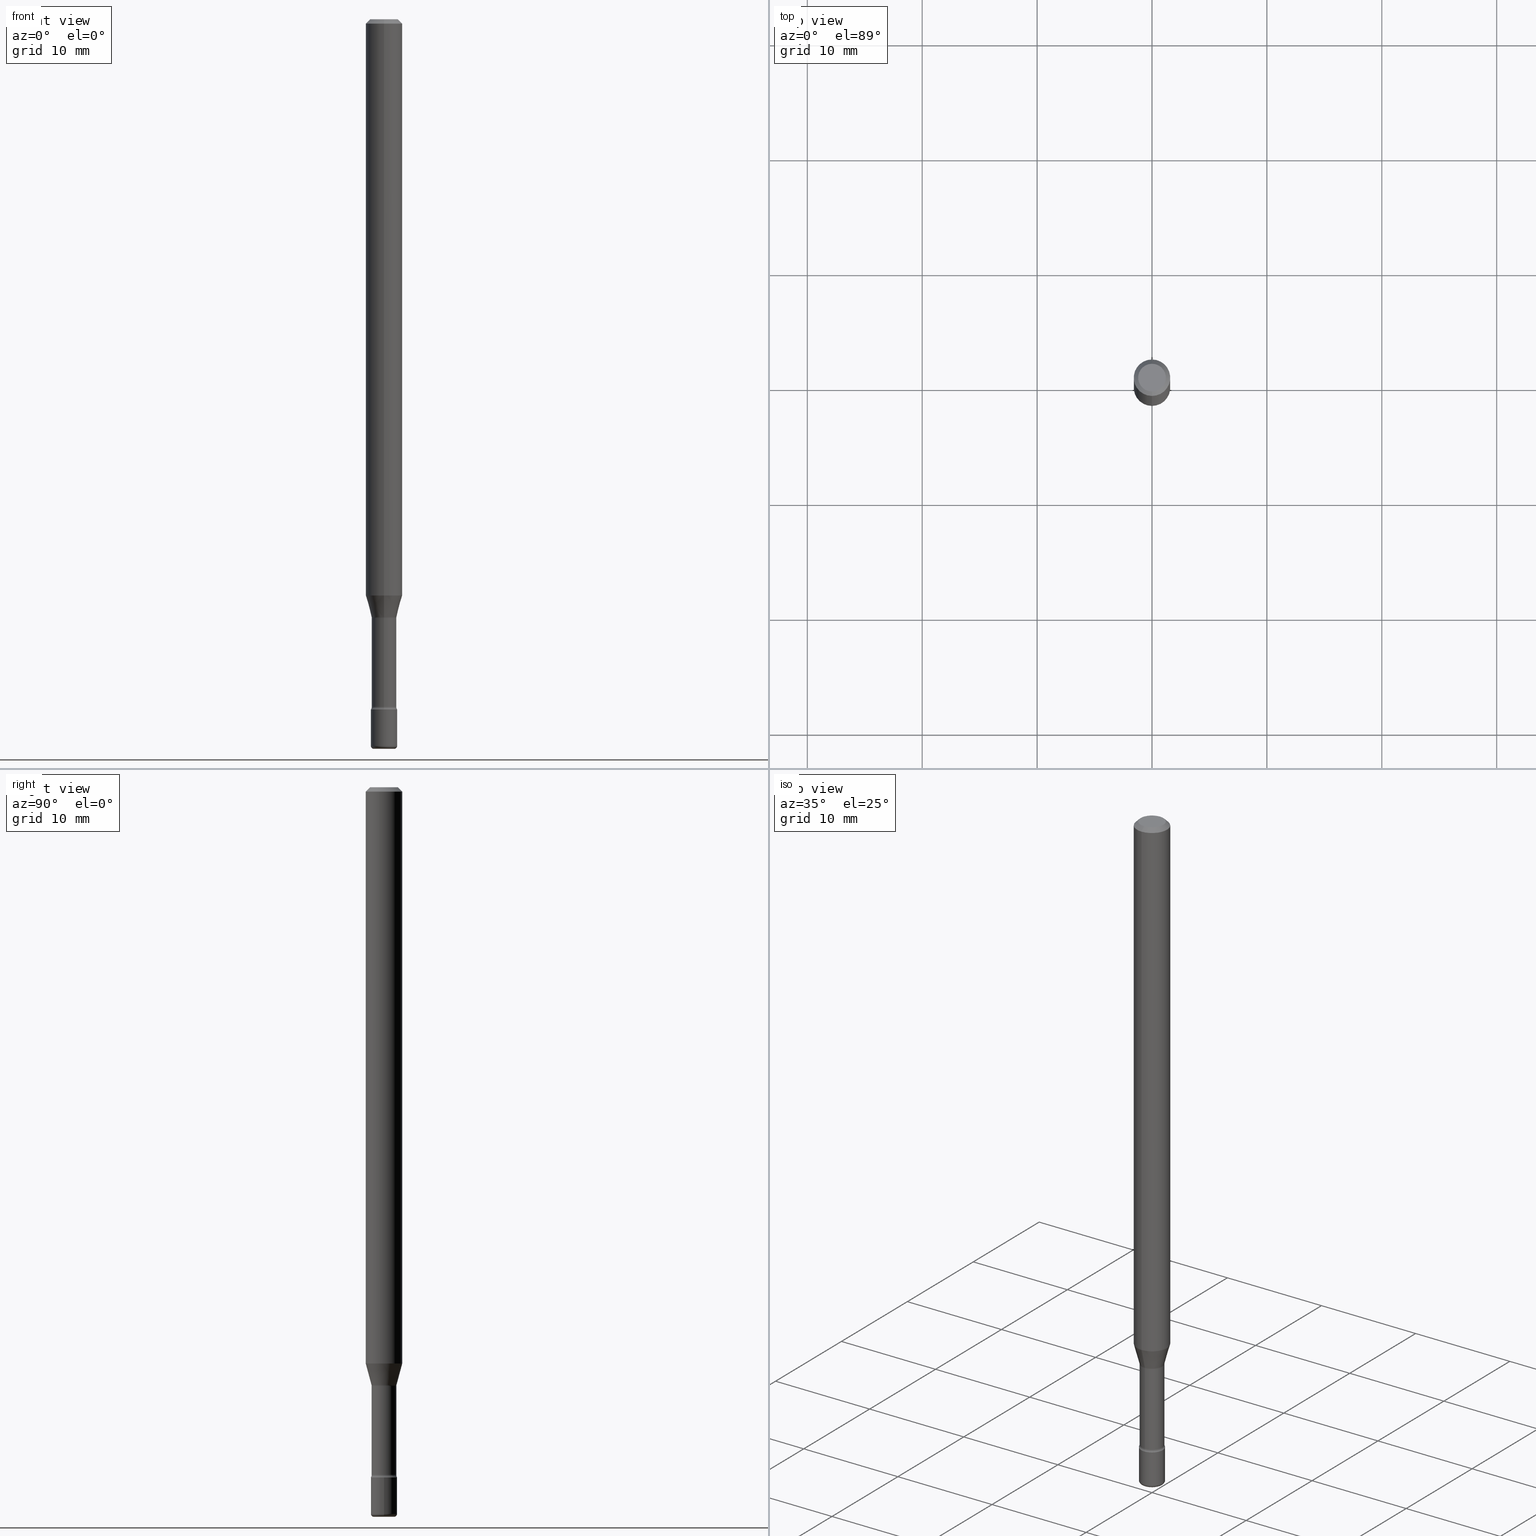
[diagram: canonical four-view strip — front | top / right | iso, engineering-drawing reading convention]
A machine part, canonical four-view strip (front | top / right | iso — engineering-drawing reading convention). The complete STEP part file that produces these views, byte-faithful:
ISO-10303-21;
HEADER;
FILE_DESCRIPTION (( 'STEP AP203' ),
    '1' );
FILE_NAME ('08851.STEP',
    '2024-03-06T20:05:46',
    ( '' ),
    ( '' ),
    'SwSTEP 2.0',
    'SolidWorks 2023',
    '' );
FILE_SCHEMA (( 'CONFIG_CONTROL_DESIGN' ));
ENDSEC;

DATA;
#1 = DIRECTION ( 'NONE',  ( -2.445411864812793917E-29, 3.491562882129241838E-15, 1.000000000000000000 ) ) ;
#2 = VERTEX_POINT ( 'NONE', #318 ) ;
#3 = DIRECTION ( 'NONE',  ( -2.445411864812793917E-29, 3.491562882129241838E-15, 1.000000000000000000 ) ) ;
#4 = VERTEX_POINT ( 'NONE', #486 ) ;
#5 = AXIS2_PLACEMENT_3D ( 'NONE', #411, #110, #73 ) ;
#6 = VECTOR ( 'NONE', #255, 39.37007874015748143 ) ;
#7 = TOROIDAL_SURFACE ( 'NONE', #409, 0.03499999999999999639, 0.01000000000000008694 ) ;
#8 = DIRECTION ( 'NONE',  ( -2.445411864812793917E-29, 3.491562882129241838E-15, 1.000000000000000000 ) ) ;
#9 = VERTEX_POINT ( 'NONE', #539 ) ;
#10 = EDGE_LOOP ( 'NONE', ( #423, #520, #572, #400 ) ) ;
#11 = PLANE ( 'NONE',  #37 ) ;
#12 = CARTESIAN_POINT ( 'NONE',  ( -4.001237614313655264E-16, -0.05730000000000824711, -2.356414547187247077 ) ) ;
#13 = ORIENTED_EDGE ( 'NONE', *, *, #502, .F. ) ;
#14 = EDGE_CURVE ( 'NONE', #252, #435, #36, .T. ) ;
#15 = ORIENTED_EDGE ( 'NONE', *, *, #545, .T. ) ;
#16 = CARTESIAN_POINT ( 'NONE',  ( 2.444036937190804124E-16, 0.03499999999999126726, -2.500000000000000000 ) ) ;
#17 = CIRCLE ( 'NONE', #448, 0.04281111260566397569 ) ;
#18 = CIRCLE ( 'NONE', #428, 0.06250000000000000000 ) ;
#19 = DIRECTION ( 'NONE',  ( -6.982962677686266711E-15, -1.000000000000000000, 6.458269488567998169E-15 ) ) ;
#20 = DIRECTION ( 'NONE',  ( -2.445411864812793917E-29, 3.491562882129241838E-15, 1.000000000000000000 ) ) ;
#21 = CARTESIAN_POINT ( 'NONE',  ( -0.04499999999999999833, -8.155826718949690513E-15, -2.365000000000000213 ) ) ;
#22 = DIRECTION ( 'NONE',  ( 1.000000000000000000, -6.982962677686266711E-15, 4.876176775795935793E-29 ) ) ;
#23 = MANIFOLD_SOLID_BREP ( 'Body-Move/Copy2[2]', #251 ) ;
#24 = DIRECTION ( 'NONE',  ( -2.445468806185136877E-29, 3.491481338843145188E-15, 1.000000000000000000 ) ) ;
#25 = DIRECTION ( 'NONE',  ( -2.445468806185136597E-29, 3.491481338843145583E-15, 1.000000000000000000 ) ) ;
#26 = PRODUCT ( '08851', '08851', '', ( #54 ) ) ;
#27 = FACE_OUTER_BOUND ( 'NONE', #131, .T. ) ;
#28 = AXIS2_PLACEMENT_3D ( 'NONE', #144, #236, #419 ) ;
#29 = APPROVAL_PERSON_ORGANIZATION ( #522, #567, #532 ) ;
#30 = DATE_AND_TIME ( #247, #390 ) ;
#31 = CARTESIAN_POINT ( 'NONE',  ( -0.04500000000000004691, -8.374044302627387137E-15, -2.489999999999999769 ) ) ;
#32 = DIRECTION ( 'NONE',  ( -2.445411864812793917E-29, 3.491562882129241838E-15, 1.000000000000000000 ) ) ;
#33 = PERSON_AND_ORGANIZATION_ROLE ( 'creator' ) ;
#34 = LINE ( 'NONE', #498, #169 ) ;
#35 = MANIFOLD_SOLID_BREP ( 'Body-Move/Copy2[1]', #527 ) ;
#36 = CIRCLE ( 'NONE', #348, 0.01000000000000008521 ) ;
#37 = AXIS2_PLACEMENT_3D ( 'NONE', #276, #322, #230 ) ;
#38 = ORIENTED_EDGE ( 'NONE', *, *, #306, .T. ) ;
#39 = CARTESIAN_POINT ( 'NONE',  ( 5.762404092109162712E-29, -8.227569567868378496E-15, -2.356414547187247521 ) ) ;
#40 = CARTESIAN_POINT ( 'NONE',  ( -2.953793212661290535E-16, -0.04229999999999999732, 6.257665088053130012E-16 ) ) ;
#41 = DIRECTION ( 'NONE',  ( -2.445411864812793917E-29, 3.491562882129241838E-15, 1.000000000000000000 ) ) ;
#42 = EDGE_CURVE ( 'NONE', #418, #435, #361, .T. ) ;
#43 = DIRECTION ( 'NONE',  ( -6.982962677686266711E-15, -1.000000000000000000, 6.458269488567998169E-15 ) ) ;
#44 = EDGE_CURVE ( 'NONE', #4, #129, #240, .T. ) ;
#45 = ORIENTED_EDGE ( 'NONE', *, *, #142, .T. ) ;
#46 = CIRCLE ( 'NONE', #253, 0.01500000000000001853 ) ;
#47 = ORIENTED_EDGE ( 'NONE', *, *, #371, .T. ) ;
#48 = CARTESIAN_POINT ( 'NONE',  ( 4.440892098500625669E-16, 0.06250000000000000000, 2.598507187581684484E-16 ) ) ;
#49 = ORIENTED_EDGE ( 'NONE', *, *, #387, .F. ) ;
#50 = DIRECTION ( 'NONE',  ( -6.982962677686265922E-15, -1.000000000000000000, 3.491562882129242627E-15 ) ) ;
#51 = ORIENTED_EDGE ( 'NONE', *, *, #311, .T. ) ;
#52 = FACE_OUTER_BOUND ( 'NONE', #145, .T. ) ;
#53 = COORDINATED_UNIVERSAL_TIME_OFFSET ( 5, 0, .BEHIND. ) ;
#54 = MECHANICAL_CONTEXT ( 'NONE', #293, 'mechanical' ) ;
#55 = ORIENTED_EDGE ( 'NONE', *, *, #337, .T. ) ;
#56 = EDGE_LOOP ( 'NONE', ( #516, #128, #101, #84 ) ) ;
#57 = AXIS2_PLACEMENT_3D ( 'NONE', #71, #8, #491 ) ;
#58 = AXIS2_PLACEMENT_3D ( 'NONE', #64, #343, #149 ) ;
#59 = COORDINATED_UNIVERSAL_TIME_OFFSET ( 5, 0, .BEHIND. ) ;
#60 = CARTESIAN_POINT ( 'NONE',  ( 5.762538269587286723E-29, -8.227377418082795508E-15, -2.356414547187247521 ) ) ;
#61 = DIRECTION ( 'NONE',  ( -6.982962677686265922E-15, -1.000000000000000000, 3.483106191921935554E-15 ) ) ;
#62 = ORIENTED_EDGE ( 'NONE', *, *, #495, .F. ) ;
#63 = PERSON_AND_ORGANIZATION ( #524, #398 ) ;
#64 = CARTESIAN_POINT ( 'NONE',  ( 3.142333204959397663E-16, 0.04499999999999174105, -2.365000000000000213 ) ) ;
#65 = DIRECTION ( 'NONE',  ( -1.000000000000000000, 7.105427357600962416E-15, 0.000000000000000000 ) ) ;
#66 = ORIENTED_EDGE ( 'NONE', *, *, #386, .F. ) ;
#67 = CC_DESIGN_PERSON_AND_ORGANIZATION_ASSIGNMENT ( #118, #172, ( #26 ) ) ;
#68 =( NAMED_UNIT ( * ) SI_UNIT ( $, .STERADIAN. ) SOLID_ANGLE_UNIT ( ) );
#69 = CIRCLE ( 'NONE', #308, 0.04500000000000000527 ) ;
#70 = ADVANCED_FACE ( 'NONE', ( #461 ), #481, .F. ) ;
#71 = CARTESIAN_POINT ( 'NONE',  ( 5.008429704104716788E-29, -7.151043758407661830E-15, -2.048092501787273534 ) ) ;
#72 = CARTESIAN_POINT ( 'NONE',  ( 5.017923491560715117E-29, -7.164599002973683646E-15, -2.051974787463811456 ) ) ;
#73 = DIRECTION ( 'NONE',  ( -6.982962677686265922E-15, -1.000000000000000000, 3.491562882129241838E-15 ) ) ;
#74 = DIRECTION ( 'NONE',  ( 2.445411864812793637E-29, -3.491562882129241838E-15, -1.000000000000000000 ) ) ;
#75 = DIRECTION ( 'NONE',  ( -4.851104656540962697E-15, -0.7071067811865497932, -0.7071067811865452413 ) ) ;
#76 = AXIS2_PLACEMENT_3D ( 'NONE', #60, #231, #413 ) ;
#77 = AXIS2_PLACEMENT_3D ( 'NONE', #301, #571, #478 ) ;
#78 = LOCAL_TIME ( 15, 5, 46.00000000000000000, #53 ) ;
#79 = DIRECTION ( 'NONE',  ( 4.937700262164546464E-15, 0.7071067811865449082, -0.7071067811865501263 ) ) ;
#80 = EDGE_CURVE ( 'NONE', #119, #566, #97, .T. ) ;
#81 = ADVANCED_FACE ( 'NONE', ( #143 ), #553, .T. ) ;
#82 = FACE_OUTER_BOUND ( 'NONE', #378, .T. ) ;
#83 = CIRCLE ( 'NONE', #153, 0.04750000000000000749 ) ;
#84 = ORIENTED_EDGE ( 'NONE', *, *, #440, .F. ) ;
#85 = ORIENTED_EDGE ( 'NONE', *, *, #292, .F. ) ;
#86 = DIRECTION ( 'NONE',  ( -6.982962677686265922E-15, -1.000000000000000000, 3.491562882129242627E-15 ) ) ;
#87 = CARTESIAN_POINT ( 'NONE',  ( -0.03499999999999999639, -8.445098576203397219E-15, -2.489999999999999769 ) ) ;
#88 = VECTOR ( 'NONE', #79, 39.37007874015748143 ) ;
#89 = CARTESIAN_POINT ( 'NONE',  ( 4.440892098501112297E-16, 0.06249999999999995837, -0.01500000000000024578 ) ) ;
#90 = AXIS2_PLACEMENT_3D ( 'NONE', #359, #127, #50 ) ;
#91 = ORIENTED_EDGE ( 'NONE', *, *, #476, .T. ) ;
#92 = ORIENTED_EDGE ( 'NONE', *, *, #296, .T. ) ;
#93 = CALENDAR_DATE ( 2024, 6, 3 ) ;
#94 = EDGE_CURVE ( 'NONE', #151, #211, #263, .T. ) ;
#95 = PERSON_AND_ORGANIZATION_ROLE ( 'creator' ) ;
#96 = EDGE_CURVE ( 'NONE', #4, #395, #340, .T. ) ;
#97 = CIRCLE ( 'NONE', #334, 0.04229999999999999732 ) ;
#98 = CONICAL_SURFACE ( 'NONE', #207, 0.06250000000000000000, 0.7853981633974480570 ) ;
#99 = ORIENTED_EDGE ( 'NONE', *, *, #292, .T. ) ;
#100 = FACE_OUTER_BOUND ( 'NONE', #215, .T. ) ;
#101 = ORIENTED_EDGE ( 'NONE', *, *, #458, .F. ) ;
#102 = CARTESIAN_POINT ( 'NONE',  ( 6.620752579593885833E-46, -9.460906030875025688E-32, -2.708531389104991304E-17 ) ) ;
#103 = CARTESIAN_POINT ( 'NONE',  ( 5.783533726627847872E-29, -8.257353366364040046E-15, -2.365000000000000213 ) ) ;
#104 = CARTESIAN_POINT ( 'NONE',  ( 0.000000000000000000, 0.000000000000000000, 0.000000000000000000 ) ) ;
#105 = PLANE ( 'NONE',  #341 ) ;
#106 = ORIENTED_EDGE ( 'NONE', *, *, #557, .T. ) ;
#107 = DIRECTION ( 'NONE',  ( -2.445468806185136597E-29, 3.491481338843145583E-15, 1.000000000000000000 ) ) ;
#108 = AXIS2_PLACEMENT_3D ( 'NONE', #279, #454, #488 ) ;
#109 = AXIS2_PLACEMENT_3D ( 'NONE', #474, #442, #362 ) ;
#110 = DIRECTION ( 'NONE',  ( -2.445411864812793917E-29, 3.491562882129241838E-15, 1.000000000000000000 ) ) ;
#111 = VECTOR ( 'NONE', #354, 39.37007874015748143 ) ;
#112 = DIRECTION ( 'NONE',  ( -2.445411864812793917E-29, 3.491562882129241838E-15, 1.000000000000000000 ) ) ;
#113 = DIRECTION ( 'NONE',  ( 0.000000000000000000, 0.000000000000000000, 1.000000000000000000 ) ) ;
#114 = ORIENTED_EDGE ( 'NONE', *, *, #533, .F. ) ;
#115 = ORIENTED_EDGE ( 'NONE', *, *, #533, .T. ) ;
#116 = AXIS2_PLACEMENT_3D ( 'NONE', #72, #377, #544 ) ;
#117 = DIRECTION ( 'NONE',  ( 1.000000000000000000, -6.982962677686278543E-15, 0.000000000000000000 ) ) ;
#118 = PERSON_AND_ORGANIZATION ( #524, #398 ) ;
#119 = VERTEX_POINT ( 'NONE', #160 ) ;
#120 = DIRECTION ( 'NONE',  ( -2.445411864812793917E-29, 3.491562882129241838E-15, 1.000000000000000000 ) ) ;
#121 = APPROVAL_STATUS ( 'not_yet_approved' ) ;
#122 = LINE ( 'NONE', #303, #6 ) ;
#123 = DIRECTION ( 'NONE',  ( -2.445411864812793917E-29, 3.491562882129241838E-15, 1.000000000000000000 ) ) ;
#124 = ORIENTED_EDGE ( 'NONE', *, *, #444, .F. ) ;
#125 = CIRCLE ( 'NONE', #509, 0.04229999999999999732 ) ;
#126 = PRODUCT_DEFINITION_FORMATION_WITH_SPECIFIED_SOURCE ( 'ANY', '', #26, .NOT_KNOWN. ) ;
#127 = DIRECTION ( 'NONE',  ( -2.445411864812793917E-29, 3.491562882129241838E-15, 1.000000000000000000 ) ) ;
#128 = ORIENTED_EDGE ( 'NONE', *, *, #439, .T. ) ;
#129 = VERTEX_POINT ( 'NONE', #470 ) ;
#130 = CARTESIAN_POINT ( 'NONE',  ( -3.773273898774340269E-16, -0.04750000000000000749, 1.387639230100891162E-16 ) ) ;
#131 = EDGE_LOOP ( 'NONE', ( #66, #270 ) ) ;
#132 = DIRECTION ( 'NONE',  ( -2.445411864812793917E-29, 3.491562882129241838E-15, 1.000000000000000000 ) ) ;
#133 = EDGE_CURVE ( 'NONE', #286, #4, #17, .T. ) ;
#134 = ADVANCED_FACE ( 'NONE', ( #82 ), #205, .T. ) ;
#135 = DIRECTION ( 'NONE',  ( 1.000000000000000000, -6.982962677686245411E-15, 0.000000000000000000 ) ) ;
#136 = ORIENTED_EDGE ( 'NONE', *, *, #306, .F. ) ;
#137 = AXIS2_PLACEMENT_3D ( 'NONE', #441, #120, #209 ) ;
#138 = DIRECTION ( 'NONE',  ( -1.000000000000000000, 6.982962677686265922E-15, -4.883557194083112340E-29 ) ) ;
#139 = APPROVAL ( #274, 'UNSPECIFIED' ) ;
#140 = LOCAL_TIME ( 15, 5, 46.00000000000000000, #59 ) ;
#141 = ORIENTED_EDGE ( 'NONE', *, *, #453, .T. ) ;
#142 = EDGE_CURVE ( 'NONE', #176, #373, #496, .T. ) ;
#143 = FACE_OUTER_BOUND ( 'NONE', #146, .T. ) ;
#144 = CARTESIAN_POINT ( 'NONE',  ( 5.008429704104716788E-29, -7.151043758407661830E-15, -2.048092501787273534 ) ) ;
#145 = EDGE_LOOP ( 'NONE', ( #85, #307, #45, #568 ) ) ;
#146 = EDGE_LOOP ( 'NONE', ( #266, #174, #536, #345 ) ) ;
#147 = CYLINDRICAL_SURFACE ( 'NONE', #449, 0.04499999999999999833 ) ;
#148 = CARTESIAN_POINT ( 'NONE',  ( 5.783533726627847872E-29, -8.257353366364040046E-15, -2.365000000000000213 ) ) ;
#149 = DIRECTION ( 'NONE',  ( -6.982962677686265922E-15, -1.000000000000000000, 3.491562882129241838E-15 ) ) ;
#150 = ORIENTED_EDGE ( 'NONE', *, *, #414, .F. ) ;
#151 = VERTEX_POINT ( 'NONE', #514 ) ;
#152 = CARTESIAN_POINT ( 'NONE',  ( 5.008429704104716788E-29, -7.151043758407661830E-15, -2.048092501787273534 ) ) ;
#153 = AXIS2_PLACEMENT_3D ( 'NONE', #503, #333, #289 ) ;
#154 = CIRCLE ( 'NONE', #325, 0.04229999999999999732 ) ;
#155 = CARTESIAN_POINT ( 'NONE',  ( 0.04499999999999999833, -3.142333204958819823E-16, 2.194279549108170967E-30 ) ) ;
#156 = DIRECTION ( 'NONE',  ( -6.982962677686265133E-15, -1.000000000000000000, 3.491562882129241838E-15 ) ) ;
#157 = CARTESIAN_POINT ( 'NONE',  ( 3.668117797219197392E-31, -5.237344323193873357E-17, -0.01500000000000002720 ) ) ;
#158 = DIRECTION ( 'NONE',  ( -1.000000000000000000, 6.982962677686265922E-15, -4.883557194083112340E-29 ) ) ;
#159 = CIRCLE ( 'NONE', #407, 0.06250000000000000000 ) ;
#160 = CARTESIAN_POINT ( 'NONE',  ( -2.953793212660714173E-16, -0.04230000000000822685, -2.356414547187247077 ) ) ;
#161 = ADVANCED_FACE ( 'NONE', ( #512 ), #497, .F. ) ;
#162 = AXIS2_PLACEMENT_3D ( 'NONE', #268, #113, #517 ) ;
#163 = ORIENTED_EDGE ( 'NONE', *, *, #414, .T. ) ;
#164 = APPLICATION_PROTOCOL_DEFINITION ( 'international standard', 'config_control_design', 1994, #293 ) ;
#165 =( LENGTH_UNIT ( ) NAMED_UNIT ( * ) SI_UNIT ( $, .METRE. ) );
#166 = CARTESIAN_POINT ( 'NONE',  ( 3.668117797219197392E-31, -5.237344323193873357E-17, -0.01500000000000002720 ) ) ;
#167 = AXIS2_PLACEMENT_3D ( 'NONE', #543, #275, #135 ) ;
#168 = DATE_TIME_ROLE ( 'creation_date' ) ;
#169 = VECTOR ( 'NONE', #75, 39.37007874015748143 ) ;
#170 = VECTOR ( 'NONE', #317, 39.37007874015748143 ) ;
#171 = VECTOR ( 'NONE', #1, 39.37007874015748143 ) ;
#172 = PERSON_AND_ORGANIZATION_ROLE ( 'design_owner' ) ;
#173 = DIRECTION ( 'NONE',  ( 2.445411864812793917E-29, -3.491562882129241838E-15, -1.000000000000000000 ) ) ;
#174 = ORIENTED_EDGE ( 'NONE', *, *, #324, .T. ) ;
#175 = FACE_OUTER_BOUND ( 'NONE', #329, .T. ) ;
#176 = VERTEX_POINT ( 'NONE', #198 ) ;
#177 = DATE_AND_TIME ( #228, #78 ) ;
#178 = VERTEX_POINT ( 'NONE', #336 ) ;
#179 = AXIS2_PLACEMENT_3D ( 'NONE', #399, #41, #299 ) ;
#180 = CARTESIAN_POINT ( 'NONE',  ( 3.101519041593414751E-16, 0.04229999999999176780, -2.356414547187247965 ) ) ;
#181 = ORIENTED_EDGE ( 'NONE', *, *, #80, .F. ) ;
#182 = SECURITY_CLASSIFICATION_LEVEL ( 'unclassified' ) ;
#183 = CARTESIAN_POINT ( 'NONE',  ( -2.989484015155254514E-16, -0.04281111260567112969, -2.048092501787273090 ) ) ;
#184 = DIRECTION ( 'NONE',  ( 2.438088387897960049E-29, -3.491481338843145188E-15, -1.000000000000000000 ) ) ;
#185 = CARTESIAN_POINT ( 'NONE',  ( 4.071409875905875748E-16, 0.05729999999999284971, -2.051974787463811456 ) ) ;
#186 = DIRECTION ( 'NONE',  ( 6.982962677686265922E-15, 1.000000000000000000, -3.483106191921935554E-15 ) ) ;
#187 = ADVANCED_FACE ( 'NONE', ( #452 ), #320, .F. ) ;
#188 = DIRECTION ( 'NONE',  ( 1.000000000000000000, -6.982962677686245411E-15, 0.000000000000000000 ) ) ;
#189 = DIRECTION ( 'NONE',  ( -1.807323732225332900E-15, -0.2588190451025185745, 0.9659258262890689783 ) ) ;
#190 = CYLINDRICAL_SURFACE ( 'NONE', #264, 0.04499999999999999833 ) ;
#191 = CIRCLE ( 'NONE', #389, 0.04499999999999999833 ) ;
#192 = CIRCLE ( 'NONE', #511, 0.06250000000000000000 ) ;
#193 = DIRECTION ( 'NONE',  ( -2.445468806185136597E-29, 3.491481338843145583E-15, 1.000000000000000000 ) ) ;
#194 = DIRECTION ( 'NONE',  ( -6.982962677686266711E-15, -1.000000000000000000, 6.381165607227959654E-15 ) ) ;
#195 = CARTESIAN_POINT ( 'NONE',  ( 6.089217327400989947E-29, -8.693788533719431716E-15, -2.489999999999999769 ) ) ;
#196 = ORIENTED_EDGE ( 'NONE', *, *, #402, .F. ) ;
#197 = CC_DESIGN_PERSON_AND_ORGANIZATION_ASSIGNMENT ( #63, #222, ( #265 ) ) ;
#198 = CARTESIAN_POINT ( 'NONE',  ( 3.840629472727447874E-16, 0.04750000000000000749, -1.929345507921889422E-16 ) ) ;
#199 = LENGTH_MEASURE_WITH_UNIT ( LENGTH_MEASURE( 0.02539999999999999897 ), #165 );
#200 = DIRECTION ( 'NONE',  ( 1.000000000000000000, -6.982962677686278543E-15, 0.000000000000000000 ) ) ;
#201 = COORDINATED_UNIVERSAL_TIME_OFFSET ( 5, 0, .BEHIND. ) ;
#202 = ADVANCED_FACE ( 'NONE', ( #100 ), #147, .T. ) ;
#203 = CIRCLE ( 'NONE', #108, 0.04499999999999999833 ) ;
#204 = ADVANCED_FACE ( 'NONE', ( #462 ), #457, .F. ) ;
#205 = CYLINDRICAL_SURFACE ( 'NONE', #569, 0.04229999999999999732 ) ;
#206 = CALENDAR_DATE ( 2024, 6, 3 ) ;
#207 = AXIS2_PLACEMENT_3D ( 'NONE', #166, #173, #186 ) ;
#208 = ADVANCED_FACE ( 'NONE', ( #422 ), #464, .T. ) ;
#209 = DIRECTION ( 'NONE',  ( -6.982962677686265922E-15, -1.000000000000000000, 3.491562882129241838E-15 ) ) ;
#210 = DIRECTION ( 'NONE',  ( -6.982962677686265922E-15, -1.000000000000000000, 3.483106191921935554E-15 ) ) ;
#211 = VERTEX_POINT ( 'NONE', #21 ) ;
#212 = CARTESIAN_POINT ( 'NONE',  ( 4.828741016102984994E-29, -6.894483968871603145E-15, -1.974612573687109185 ) ) ;
#213 = DIRECTION ( 'NONE',  ( -2.445411864812793917E-29, 3.491562882129241838E-15, 1.000000000000000000 ) ) ;
#214 = ADVANCED_FACE ( 'NONE', ( #374 ), #11, .T. ) ;
#215 = EDGE_LOOP ( 'NONE', ( #92, #47, #319, #229 ) ) ;
#216 = AXIS2_PLACEMENT_3D ( 'NONE', #195, #381, #412 ) ;
#217 = APPLICATION_CONTEXT ( 'configuration controlled 3d designs of mechanical parts and assemblies' ) ;
#218 = CARTESIAN_POINT ( 'NONE',  ( -4.364351673553916201E-16, -0.06250000000000000000, 6.962960790243237274E-16 ) ) ;
#219 = ORIENTED_EDGE ( 'NONE', *, *, #243, .T. ) ;
#220 = EDGE_LOOP ( 'NONE', ( #515, #281 ) ) ;
#221 = ORIENTED_EDGE ( 'NONE', *, *, #324, .F. ) ;
#222 = PERSON_AND_ORGANIZATION_ROLE ( 'classification_officer' ) ;
#223 = FACE_OUTER_BOUND ( 'NONE', #304, .T. ) ;
#224 = EDGE_LOOP ( 'NONE', ( #313, #219, #490, #494 ) ) ;
#225 = AXIS2_PLACEMENT_3D ( 'NONE', #103, #193, #379 ) ;
#226 = CIRCLE ( 'NONE', #237, 0.01000000000000008521 ) ;
#227 = CC_DESIGN_APPROVAL ( #567, ( #126 ) ) ;
#228 = CALENDAR_DATE ( 2024, 6, 3 ) ;
#229 = ORIENTED_EDGE ( 'NONE', *, *, #485, .F. ) ;
#230 = DIRECTION ( 'NONE',  ( 1.000000000000000000, -6.982962677686265922E-15, 4.876176775795935793E-29 ) ) ;
#231 = DIRECTION ( 'NONE',  ( -2.445411864812793917E-29, 3.491562882129241838E-15, 1.000000000000000000 ) ) ;
#232 = APPROVAL_ROLE ( '' ) ;
#233 = DIRECTION ( 'NONE',  ( -6.982962677686266711E-15, -1.000000000000000000, 3.491481338843145583E-15 ) ) ;
#234 = DATE_TIME_ROLE ( 'classification_date' ) ;
#235 = ORIENTED_EDGE ( 'NONE', *, *, #257, .F. ) ;
#236 = DIRECTION ( 'NONE',  ( -2.445411864812793917E-29, 3.491562882129241838E-15, 1.000000000000000000 ) ) ;
#237 = AXIS2_PLACEMENT_3D ( 'NONE', #87, #316, #65 ) ;
#238 = DIRECTION ( 'NONE',  ( -1.000000000000000000, 6.982962677686265922E-15, -4.876176775795935793E-29 ) ) ;
#239 = CONICAL_SURFACE ( 'NONE', #109, 0.06250000000000000000, 0.7853981633974480570 ) ;
#240 = LINE ( 'NONE', #183, #508 ) ;
#241 = CARTESIAN_POINT ( 'NONE',  ( 0.03499999999999999639, -8.973107040826884909E-15, -2.500000000000000000 ) ) ;
#242 = CARTESIAN_POINT ( 'NONE',  ( 6.113672015462842613E-29, -8.728703347107864943E-15, -2.500000000000000000 ) ) ;
#243 = EDGE_CURVE ( 'NONE', #286, #9, #541, .T. ) ;
#244 = AXIS2_PLACEMENT_3D ( 'NONE', #540, #74, #380 ) ;
#245 = AXIS2_PLACEMENT_3D ( 'NONE', #157, #472, #210 ) ;
#246 = CC_DESIGN_APPROVAL ( #426, ( #467 ) ) ;
#247 = CALENDAR_DATE ( 2024, 6, 3 ) ;
#248 = CARTESIAN_POINT ( 'NONE',  ( 3.005595772265223103E-16, 0.04229999999999999732, 3.303802889771791745E-16 ) ) ;
#249 = APPROVAL_STATUS ( 'not_yet_approved' ) ;
#250 = ADVANCED_FACE ( 'NONE', ( #417 ), #190, .T. ) ;
#251 = CLOSED_SHELL ( 'NONE', ( #70, #559, #187, #394, #513, #81, #280, #339, #519, #161, #204, #506, #134, #391 ) ) ;
#252 = VERTEX_POINT ( 'NONE', #241 ) ;
#253 = AXIS2_PLACEMENT_3D ( 'NONE', #12, #138, #443 ) ;
#254 = CYLINDRICAL_SURFACE ( 'NONE', #531, 0.04229999999999999732 ) ;
#255 = DIRECTION ( 'NONE',  ( -2.445468806185136877E-29, 3.491481338843145188E-15, 1.000000000000000000 ) ) ;
#256 = ORIENTED_EDGE ( 'NONE', *, *, #440, .T. ) ;
#257 = EDGE_CURVE ( 'NONE', #9, #395, #555, .T. ) ;
#258 = ORIENTED_EDGE ( 'NONE', *, *, #133, .T. ) ;
#259 = FACE_OUTER_BOUND ( 'NONE', #446, .T. ) ;
#260 = EDGE_LOOP ( 'NONE', ( #13, #181, #55, #38 ) ) ;
#261 = CARTESIAN_POINT ( 'NONE',  ( 6.089217327400989947E-29, -8.693788533719431716E-15, -2.489999999999999769 ) ) ;
#262 = CARTESIAN_POINT ( 'NONE',  ( -0.03499999999999999639, -8.427028846109608002E-15, -2.500000000000000000 ) ) ;
#263 = CIRCLE ( 'NONE', #225, 0.04499999999999999833 ) ;
#264 = AXIS2_PLACEMENT_3D ( 'NONE', #104, #459, #285 ) ;
#265 = SECURITY_CLASSIFICATION ( '', '', #182 ) ;
#266 = ORIENTED_EDGE ( 'NONE', *, *, #269, .T. ) ;
#267 = FACE_OUTER_BOUND ( 'NONE', #328, .T. ) ;
#268 = CARTESIAN_POINT ( 'NONE',  ( 0.000000000000000000, 0.000000000000000000, 0.000000000000000000 ) ) ;
#269 = EDGE_CURVE ( 'NONE', #4, #286, #277, .T. ) ;
#270 = ORIENTED_EDGE ( 'NONE', *, *, #476, .F. ) ;
#271 = DATE_AND_TIME ( #93, #564 ) ;
#272 = PERSON_AND_ORGANIZATION_ROLE ( 'design_supplier' ) ;
#273 = ORIENTED_EDGE ( 'NONE', *, *, #14, .T. ) ;
#274 = APPROVAL_STATUS ( 'not_yet_approved' ) ;
#275 = DIRECTION ( 'NONE',  ( -2.445468806185136597E-29, 3.491481338843145583E-15, 1.000000000000000000 ) ) ;
#276 = CARTESIAN_POINT ( 'NONE',  ( 5.783533726627847872E-29, -8.257353366364040046E-15, -2.365000000000000213 ) ) ;
#277 = CIRCLE ( 'NONE', #28, 0.04281111260566397569 ) ;
#278 = DIRECTION ( 'NONE',  ( 1.000000000000000000, -7.105427357601001070E-15, 4.926316507159325352E-29 ) ) ;
#279 = CARTESIAN_POINT ( 'NONE',  ( 5.783399060282257641E-29, -8.257546216235657656E-15, -2.365000000000000213 ) ) ;
#280 = ADVANCED_FACE ( 'NONE', ( #327 ), #290, .T. ) ;
#281 = ORIENTED_EDGE ( 'NONE', *, *, #402, .T. ) ;
#282 = EDGE_CURVE ( 'NONE', #365, #129, #18, .T. ) ;
#283 = PERSON_AND_ORGANIZATION ( #524, #398 ) ;
#284 = ORIENTED_EDGE ( 'NONE', *, *, #545, .F. ) ;
#285 = DIRECTION ( 'NONE',  ( 1.000000000000000000, -6.982962677686266711E-15, 4.876176775795935793E-29 ) ) ;
#286 = VERTEX_POINT ( 'NONE', #560 ) ;
#287 = TOROIDAL_SURFACE ( 'NONE', #179, 0.05730000000000001065, 0.01500000000000003587 ) ;
#288 = DIRECTION ( 'NONE',  ( -6.982962677686265922E-15, -1.000000000000000000, 4.370956789862821150E-15 ) ) ;
#289 = DIRECTION ( 'NONE',  ( -6.982962677686265133E-15, -1.000000000000000000, 3.491562882129241838E-15 ) ) ;
#290 = CONICAL_SURFACE ( 'NONE', #323, 0.04281111260566397569, 0.2617993877991506846 ) ;
#291 = DIMENSIONAL_EXPONENTS ( 1.000000000000000000, 0.000000000000000000, 0.000000000000000000, 0.000000000000000000, 0.000000000000000000, 0.000000000000000000, 0.000000000000000000 ) ;
#292 = EDGE_CURVE ( 'NONE', #551, #178, #34, .T. ) ;
#293 = APPLICATION_CONTEXT ( 'configuration controlled 3d designs of mechanical parts and assemblies' ) ;
#294 = ADVANCED_FACE ( 'NONE', ( #27 ), #105, .T. ) ;
#295 = VERTEX_POINT ( 'NONE', #367 ) ;
#296 = EDGE_CURVE ( 'NONE', #435, #418, #69, .T. ) ;
#297 = CIRCLE ( 'NONE', #482, 0.04499999999999999833 ) ;
#298 = ORIENTED_EDGE ( 'NONE', *, *, #42, .T. ) ;
#299 = DIRECTION ( 'NONE',  ( -6.982962677686265922E-15, -1.000000000000000000, 3.491562882129241838E-15 ) ) ;
#300 = CC_DESIGN_PERSON_AND_ORGANIZATION_ASSIGNMENT ( #283, #272, ( #126 ) ) ;
#301 = CARTESIAN_POINT ( 'NONE',  ( 4.071409875905951183E-16, 0.05729999999999178806, -2.356414547187247965 ) ) ;
#302 = EDGE_LOOP ( 'NONE', ( #360, #465, #392, #397 ) ) ;
#303 = CARTESIAN_POINT ( 'NONE',  ( -0.04499999999999999833, 3.197442310920450718E-16, -2.213520790614707560E-30 ) ) ;
#304 = EDGE_LOOP ( 'NONE', ( #114, #312, #403, #62 ) ) ;
#305 = CC_DESIGN_PERSON_AND_ORGANIZATION_ASSIGNMENT ( #525, #95, ( #126 ) ) ;
#306 = EDGE_CURVE ( 'NONE', #2, #295, #203, .T. ) ;
#307 = ORIENTED_EDGE ( 'NONE', *, *, #450, .F. ) ;
#308 = AXIS2_PLACEMENT_3D ( 'NONE', #534, #410, #188 ) ;
#309 = AXIS2_PLACEMENT_3D ( 'NONE', #523, #123, #86 ) ;
#310 = CC_DESIGN_DATE_AND_TIME_ASSIGNMENT ( #388, #168, ( #467 ) ) ;
#311 = EDGE_CURVE ( 'NONE', #178, #373, #159, .T. ) ;
#312 = ORIENTED_EDGE ( 'NONE', *, *, #282, .T. ) ;
#313 = ORIENTED_EDGE ( 'NONE', *, *, #133, .F. ) ;
#314 = DIRECTION ( 'NONE',  ( -2.445411864812793917E-29, 3.491562882129241838E-15, 1.000000000000000000 ) ) ;
#315 = COORDINATED_UNIVERSAL_TIME_OFFSET ( 5, 0, .BEHIND. ) ;
#316 = DIRECTION ( 'NONE',  ( 7.105427357601001859E-15, 1.000000000000000000, -3.491481338843145583E-15 ) ) ;
#317 = DIRECTION ( 'NONE',  ( 1.839019923739603076E-15, 0.2588190451025253469, 0.9659258262890670910 ) ) ;
#318 = CARTESIAN_POINT ( 'NONE',  ( -3.142333204958241982E-16, -0.04500000000000827644, -2.364999999999999769 ) ) ;
#319 = ORIENTED_EDGE ( 'NONE', *, *, #94, .F. ) ;
#320 = TOROIDAL_SURFACE ( 'NONE', #76, 0.05730000000000001759, 0.01500000000000001506 ) ;
#321 = ORIENTED_EDGE ( 'NONE', *, *, #42, .F. ) ;
#322 = DIRECTION ( 'NONE',  ( -2.438088387897960049E-29, 3.491481338843145188E-15, 1.000000000000000000 ) ) ;
#323 = AXIS2_PLACEMENT_3D ( 'NONE', #152, #20, #194 ) ;
#324 = EDGE_CURVE ( 'NONE', #286, #365, #415, .T. ) ;
#325 = AXIS2_PLACEMENT_3D ( 'NONE', #39, #3, #43 ) ;
#326 = PERSON_AND_ORGANIZATION ( #524, #398 ) ;
#327 = FACE_OUTER_BOUND ( 'NONE', #538, .T. ) ;
#328 = EDGE_LOOP ( 'NONE', ( #106, #115, #535, #49 ) ) ;
#329 = EDGE_LOOP ( 'NONE', ( #124, #91, #273, #321 ) ) ;
#330 = CARTESIAN_POINT ( 'NONE',  ( 0.000000000000000000, 0.000000000000000000, 0.000000000000000000 ) ) ;
#331 = CARTESIAN_POINT ( 'NONE',  ( 0.03499999999999999639, -8.938192227438451682E-15, -2.489999999999999769 ) ) ;
#332 = DIRECTION ( 'NONE',  ( -2.445411864812793917E-29, 3.491562882129241838E-15, 1.000000000000000000 ) ) ;
#333 = DIRECTION ( 'NONE',  ( -2.445411864812793917E-29, 3.491562882129241838E-15, 1.000000000000000000 ) ) ;
#334 = AXIS2_PLACEMENT_3D ( 'NONE', #376, #408, #19 ) ;
#335 = AXIS2_PLACEMENT_3D ( 'NONE', #102, #132, #156 ) ;
#336 = CARTESIAN_POINT ( 'NONE',  ( -4.364351673553912750E-16, -0.06250000000000005551, -0.01499999999999981036 ) ) ;
#337 = EDGE_CURVE ( 'NONE', #119, #2, #46, .T. ) ;
#338 = PRODUCT_DEFINITION_SHAPE ( 'NONE', 'NONE',  #467 ) ;
#339 = ADVANCED_FACE ( 'NONE', ( #223 ), #460, .T. ) ;
#340 = CIRCLE ( 'NONE', #383, 0.01500000000000003587 ) ;
#341 = AXIS2_PLACEMENT_3D ( 'NONE', #16, #184, #238 ) ;
#342 = DIRECTION ( 'NONE',  ( -6.982962677686268288E-15, -1.000000000000000000, 0.000000000000000000 ) ) ;
#343 = DIRECTION ( 'NONE',  ( -2.445411864812793637E-29, 3.491562882129241838E-15, 1.000000000000000000 ) ) ;
#344 = LINE ( 'NONE', #40, #471 ) ;
#345 = ORIENTED_EDGE ( 'NONE', *, *, #44, .F. ) ;
#346 = DIRECTION ( 'NONE',  ( -2.445411864812793917E-29, 3.491562882129241838E-15, 1.000000000000000000 ) ) ;
#347 = LINE ( 'NONE', #218, #111 ) ;
#348 = AXIS2_PLACEMENT_3D ( 'NONE', #331, #233, #499 ) ;
#349 = VERTEX_POINT ( 'NONE', #262 ) ;
#350 = AXIS2_PLACEMENT_3D ( 'NONE', #431, #477, #117 ) ;
#351 = CYLINDRICAL_SURFACE ( 'NONE', #309, 0.06250000000000000000 ) ;
#352 = COORDINATED_UNIVERSAL_TIME_OFFSET ( 5, 0, .BEHIND. ) ;
#353 = LOCAL_TIME ( 15, 5, 46.00000000000000000, #201 ) ;
#354 = DIRECTION ( 'NONE',  ( -2.445411864812793917E-29, 3.491562882129241838E-15, 1.000000000000000000 ) ) ;
#355 = APPLICATION_PROTOCOL_DEFINITION ( 'international standard', 'config_control_design', 1994, #217 ) ;
#356 = EDGE_LOOP ( 'NONE', ( #473, #163 ) ) ;
#357 = DIRECTION ( 'NONE',  ( 1.000000000000000000, -6.982962677686276966E-15, 4.883557194083115704E-29 ) ) ;
#358 = EDGE_LOOP ( 'NONE', ( #136, #437 ) ) ;
#359 = CARTESIAN_POINT ( 'NONE',  ( -1.169113584055446105E-44, 1.669184350826100908E-30, 4.780733988912460139E-16 ) ) ;
#360 = ORIENTED_EDGE ( 'NONE', *, *, #386, .T. ) ;
#361 = CIRCLE ( 'NONE', #167, 0.04500000000000000527 ) ;
#362 = DIRECTION ( 'NONE',  ( 6.982962677686265922E-15, 1.000000000000000000, -3.483106191921935554E-15 ) ) ;
#363 = CIRCLE ( 'NONE', #350, 0.03499999999999999639 ) ;
#364 = SHAPE_DEFINITION_REPRESENTATION ( #338, #438 ) ;
#365 = VERTEX_POINT ( 'NONE', #565 ) ;
#366 = DIRECTION ( 'NONE',  ( -2.445468806185136597E-29, 3.491481338843145583E-15, 1.000000000000000000 ) ) ;
#367 = CARTESIAN_POINT ( 'NONE',  ( 3.197442310921029545E-16, 0.04499999999999174799, -2.365000000000000213 ) ) ;
#368 = ORIENTED_EDGE ( 'NONE', *, *, #282, .F. ) ;
#369 = UNCERTAINTY_MEASURE_WITH_UNIT (LENGTH_MEASURE( 1.000000000000000082E-05 ), #382, 'distance_accuracy_value', 'NONE');
#370 = ORIENTED_EDGE ( 'NONE', *, *, #485, .T. ) ;
#371 = EDGE_CURVE ( 'NONE', #418, #211, #122, .T. ) ;
#372 = CALENDAR_DATE ( 2024, 6, 3 ) ;
#373 = VERTEX_POINT ( 'NONE', #89 ) ;
#374 = FACE_OUTER_BOUND ( 'NONE', #220, .T. ) ;
#375 = PERSON_AND_ORGANIZATION ( #524, #398 ) ;
#376 = CARTESIAN_POINT ( 'NONE',  ( 5.762404092109162712E-29, -8.227569567868378496E-15, -2.356414547187247521 ) ) ;
#377 = DIRECTION ( 'NONE',  ( -2.445411864812793917E-29, 3.491562882129241838E-15, 1.000000000000000000 ) ) ;
#378 = EDGE_LOOP ( 'NONE', ( #547, #15, #256, #235 ) ) ;
#379 = DIRECTION ( 'NONE',  ( 1.000000000000000000, -6.982962677686269077E-15, 0.000000000000000000 ) ) ;
#380 = DIRECTION ( 'NONE',  ( 6.982962677686265922E-15, 1.000000000000000000, -3.491562882129241838E-15 ) ) ;
#381 = DIRECTION ( 'NONE',  ( -2.445468806185136597E-29, 3.491481338843145583E-15, 1.000000000000000000 ) ) ;
#382 =( CONVERSION_BASED_UNIT ( 'INCH', #199 ) LENGTH_UNIT ( ) NAMED_UNIT ( #291 ) );
#383 = AXIS2_PLACEMENT_3D ( 'NONE', #548, #158, #342 ) ;
#384 = AXIS2_PLACEMENT_3D ( 'NONE', #242, #25, #200 ) ;
#385 = APPROVAL_PERSON_ORGANIZATION ( #326, #426, #505 ) ;
#386 = EDGE_CURVE ( 'NONE', #252, #349, #363, .T. ) ;
#387 = EDGE_CURVE ( 'NONE', #129, #178, #347, .T. ) ;
#388 = DATE_AND_TIME ( #206, #353 ) ;
#389 = AXIS2_PLACEMENT_3D ( 'NONE', #148, #366, #537 ) ;
#390 = LOCAL_TIME ( 15, 5, 46.00000000000000000, #352 ) ;
#391 = ADVANCED_FACE ( 'NONE', ( #434 ), #287, .F. ) ;
#392 = ORIENTED_EDGE ( 'NONE', *, *, #296, .F. ) ;
#393 = CARTESIAN_POINT ( 'NONE',  ( -1.169113584055446105E-44, 1.669184350826100908E-30, 4.780733988912460139E-16 ) ) ;
#394 = ADVANCED_FACE ( 'NONE', ( #259 ), #98, .T. ) ;
#395 = VERTEX_POINT ( 'NONE', #550 ) ;
#396 = TOROIDAL_SURFACE ( 'NONE', #137, 0.05730000000000001759, 0.01500000000000001506 ) ;
#397 = ORIENTED_EDGE ( 'NONE', *, *, #14, .F. ) ;
#398 = ORGANIZATION ( 'UNSPECIFIED', 'UNSPECIFIED', '' ) ;
#399 = CARTESIAN_POINT ( 'NONE',  ( 5.018040333821126293E-29, -7.164431678206526346E-15, -2.051974787463811456 ) ) ;
#400 = ORIENTED_EDGE ( 'NONE', *, *, #458, .T. ) ;
#401 = CARTESIAN_POINT ( 'NONE',  ( -1.169113584055446105E-44, 1.669184350826100908E-30, 4.780733988912460139E-16 ) ) ;
#402 = EDGE_CURVE ( 'NONE', #211, #151, #191, .T. ) ;
#403 = ORIENTED_EDGE ( 'NONE', *, *, #387, .T. ) ;
#404 = ORIENTED_EDGE ( 'NONE', *, *, #502, .T. ) ;
#405 = DIRECTION ( 'NONE',  ( -2.445468806185136597E-29, 3.491481338843145583E-15, 1.000000000000000000 ) ) ;
#406 = DIRECTION ( 'NONE',  ( -2.445411864812793917E-29, 3.491562882129241838E-15, 1.000000000000000000 ) ) ;
#407 = AXIS2_PLACEMENT_3D ( 'NONE', #528, #546, #61 ) ;
#408 = DIRECTION ( 'NONE',  ( -2.445411864812793917E-29, 3.491562882129241838E-15, 1.000000000000000000 ) ) ;
#409 = AXIS2_PLACEMENT_3D ( 'NONE', #261, #405, #357 ) ;
#410 = DIRECTION ( 'NONE',  ( -2.445468806185136597E-29, 3.491481338843145583E-15, 1.000000000000000000 ) ) ;
#411 = CARTESIAN_POINT ( 'NONE',  ( 5.018040333821126293E-29, -7.164431678206526346E-15, -2.051974787463811456 ) ) ;
#412 = DIRECTION ( 'NONE',  ( 1.000000000000000000, -6.982962677686276966E-15, 4.883557194083115704E-29 ) ) ;
#413 = DIRECTION ( 'NONE',  ( -6.982962677686265922E-15, -1.000000000000000000, 3.491562882129241838E-15 ) ) ;
#414 = EDGE_CURVE ( 'NONE', #551, #176, #420, .T. ) ;
#415 = LINE ( 'NONE', #493, #170 ) ;
#416 = ORIENTED_EDGE ( 'NONE', *, *, #142, .F. ) ;
#417 = FACE_OUTER_BOUND ( 'NONE', #530, .T. ) ;
#418 = VERTEX_POINT ( 'NONE', #31 ) ;
#419 = DIRECTION ( 'NONE',  ( -6.982962677686266711E-15, -1.000000000000000000, 6.381165607227959654E-15 ) ) ;
#420 = CIRCLE ( 'NONE', #335, 0.04750000000000000749 ) ;
#421 = APPROVAL_PERSON_ORGANIZATION ( #375, #139, #232 ) ;
#422 = FACE_OUTER_BOUND ( 'NONE', #302, .T. ) ;
#423 = ORIENTED_EDGE ( 'NONE', *, *, #243, .F. ) ;
#424 = CARTESIAN_POINT ( 'NONE',  ( 5.008429704104716788E-29, -7.151043758407661830E-15, -2.048092501787273534 ) ) ;
#425 = APPROVAL_DATE_TIME ( #30, #426 ) ;
#426 = APPROVAL ( #249, 'UNSPECIFIED' ) ;
#427 = CIRCLE ( 'NONE', #384, 0.03499999999999999639 ) ;
#428 = AXIS2_PLACEMENT_3D ( 'NONE', #549, #332, #288 ) ;
#429 = DIRECTION ( 'NONE',  ( -6.982962677686265133E-15, -1.000000000000000000, 6.070773319253918263E-15 ) ) ;
#430 = PERSON_AND_ORGANIZATION ( #524, #398 ) ;
#431 = CARTESIAN_POINT ( 'NONE',  ( 6.113672015462842613E-29, -8.728703347107864943E-15, -2.500000000000000000 ) ) ;
#432 = CC_DESIGN_SECURITY_CLASSIFICATION ( #265, ( #126 ) ) ;
#433 = ORIENTED_EDGE ( 'NONE', *, *, #337, .F. ) ;
#434 = FACE_OUTER_BOUND ( 'NONE', #10, .T. ) ;
#435 = VERTEX_POINT ( 'NONE', #510 ) ;
#436 = LINE ( 'NONE', #48, #171 ) ;
#437 = ORIENTED_EDGE ( 'NONE', *, *, #453, .F. ) ;
#438 = ADVANCED_BREP_SHAPE_REPRESENTATION ( '08851', ( #35, #23, #162 ), #501 ) ;
#439 = EDGE_CURVE ( 'NONE', #566, #9, #504, .T. ) ;
#440 = EDGE_CURVE ( 'NONE', #119, #395, #344, .T. ) ;
#441 = CARTESIAN_POINT ( 'NONE',  ( 5.762538269587286723E-29, -8.227377418082795508E-15, -2.356414547187247521 ) ) ;
#442 = DIRECTION ( 'NONE',  ( 2.445411864812793917E-29, -3.491562882129241838E-15, -1.000000000000000000 ) ) ;
#443 = DIRECTION ( 'NONE',  ( -6.982962677686263555E-15, -1.000000000000000000, 0.000000000000000000 ) ) ;
#444 = EDGE_CURVE ( 'NONE', #349, #418, #226, .T. ) ;
#445 = DIRECTION ( 'NONE',  ( -6.982962677686266711E-15, -1.000000000000000000, 3.491562882129241049E-15 ) ) ;
#446 = EDGE_LOOP ( 'NONE', ( #150, #99, #51, #416 ) ) ;
#447 = DATE_AND_TIME ( #372, #140 ) ;
#448 = AXIS2_PLACEMENT_3D ( 'NONE', #424, #507, #468 ) ;
#449 = AXIS2_PLACEMENT_3D ( 'NONE', #330, #107, #22 ) ;
#450 = EDGE_CURVE ( 'NONE', #176, #551, #83, .T. ) ;
#451 = ORIENTED_EDGE ( 'NONE', *, *, #44, .T. ) ;
#452 = FACE_OUTER_BOUND ( 'NONE', #492, .T. ) ;
#453 = EDGE_CURVE ( 'NONE', #295, #2, #297, .T. ) ;
#454 = DIRECTION ( 'NONE',  ( -2.445411864812793917E-29, 3.491562882129241838E-15, 1.000000000000000000 ) ) ;
#455 = PRODUCT_RELATED_PRODUCT_CATEGORY ( 'detail', '', ( #26 ) ) ;
#456 = DIRECTION ( 'NONE',  ( 7.105427357601001859E-15, 1.000000000000000000, 0.000000000000000000 ) ) ;
#457 = PLANE ( 'NONE',  #58 ) ;
#458 = EDGE_CURVE ( 'NONE', #395, #9, #125, .T. ) ;
#459 = DIRECTION ( 'NONE',  ( -2.445468806185136597E-29, 3.491481338843145583E-15, 1.000000000000000000 ) ) ;
#460 = CYLINDRICAL_SURFACE ( 'NONE', #90, 0.06250000000000000000 ) ;
#461 = FACE_OUTER_BOUND ( 'NONE', #224, .T. ) ;
#462 = FACE_OUTER_BOUND ( 'NONE', #358, .T. ) ;
#463 = DIRECTION ( 'NONE',  ( -6.982962677686266711E-15, -1.000000000000000000, 6.458269488567998169E-15 ) ) ;
#464 = TOROIDAL_SURFACE ( 'NONE', #216, 0.03499999999999999639, 0.01000000000000008694 ) ;
#465 = ORIENTED_EDGE ( 'NONE', *, *, #444, .T. ) ;
#466 = DIRECTION ( 'NONE',  ( -2.445411864812793917E-29, 3.491562882129241838E-15, 1.000000000000000000 ) ) ;
#467 = PRODUCT_DEFINITION ( 'UNKNOWN', '', #126, #487 ) ;
#468 = DIRECTION ( 'NONE',  ( -6.982962677686266711E-15, -1.000000000000000000, 6.381165607227959654E-15 ) ) ;
#469 =( NAMED_UNIT ( * ) PLANE_ANGLE_UNIT ( ) SI_UNIT ( $, .RADIAN. ) );
#470 = CARTESIAN_POINT ( 'NONE',  ( -4.364351673553431052E-16, -0.06250000000000686950, -1.974612573687108963 ) ) ;
#471 = VECTOR ( 'NONE', #213, 39.37007874015748143 ) ;
#472 = DIRECTION ( 'NONE',  ( -2.445411864812793917E-29, 3.491562882129241838E-15, 1.000000000000000000 ) ) ;
#473 = ORIENTED_EDGE ( 'NONE', *, *, #450, .T. ) ;
#474 = CARTESIAN_POINT ( 'NONE',  ( 3.668117797219197392E-31, -5.237344323193873357E-17, -0.01500000000000002720 ) ) ;
#475 = CC_DESIGN_PERSON_AND_ORGANIZATION_ASSIGNMENT ( #430, #33, ( #467 ) ) ;
#476 = EDGE_CURVE ( 'NONE', #349, #252, #427, .T. ) ;
#477 = DIRECTION ( 'NONE',  ( -2.445468806185136597E-29, 3.491481338843145583E-15, 1.000000000000000000 ) ) ;
#478 = DIRECTION ( 'NONE',  ( 7.105427357600998703E-15, 1.000000000000000000, 0.000000000000000000 ) ) ;
#479 = ORIENTED_EDGE ( 'NONE', *, *, #371, .F. ) ;
#480 = FACE_OUTER_BOUND ( 'NONE', #260, .T. ) ;
#481 = TOROIDAL_SURFACE ( 'NONE', #5, 0.05730000000000001065, 0.01500000000000003587 ) ;
#482 = AXIS2_PLACEMENT_3D ( 'NONE', #500, #466, #429 ) ;
#483 = APPROVAL_DATE_TIME ( #447, #139 ) ;
#484 = DIRECTION ( 'NONE',  ( -6.982962677686265922E-15, -1.000000000000000000, 4.370956789862821150E-15 ) ) ;
#485 = EDGE_CURVE ( 'NONE', #435, #151, #554, .T. ) ;
#486 = CARTESIAN_POINT ( 'NONE',  ( -2.989484015155254514E-16, -0.04281111260567112969, -2.048092501787273090 ) ) ;
#487 = DESIGN_CONTEXT ( 'detailed design', #217, 'design' ) ;
#488 = DIRECTION ( 'NONE',  ( -6.982962677686265133E-15, -1.000000000000000000, 6.070773319253918263E-15 ) ) ;
#489 = CIRCLE ( 'NONE', #245, 0.06250000000000000000 ) ;
#490 = ORIENTED_EDGE ( 'NONE', *, *, #257, .T. ) ;
#491 = DIRECTION ( 'NONE',  ( -6.982962677686266711E-15, -1.000000000000000000, 6.381165607227959654E-15 ) ) ;
#492 = EDGE_LOOP ( 'NONE', ( #284, #404, #141, #433 ) ) ;
#493 = CARTESIAN_POINT ( 'NONE',  ( 3.041912507176719677E-16, 0.04281111260565682169, -2.048092501787273534 ) ) ;
#494 = ORIENTED_EDGE ( 'NONE', *, *, #96, .F. ) ;
#495 = EDGE_CURVE ( 'NONE', #373, #178, #489, .T. ) ;
#496 = LINE ( 'NONE', #562, #88 ) ;
#497 = PLANE ( 'NONE',  #244 ) ;
#498 = CARTESIAN_POINT ( 'NONE',  ( -4.287811248607203282E-16, -0.06250000000000005551, -0.01499999999999981036 ) ) ;
#499 = DIRECTION ( 'NONE',  ( 1.000000000000000000, -6.982962677686273021E-15, 0.000000000000000000 ) ) ;
#500 = CARTESIAN_POINT ( 'NONE',  ( 5.783399060282257641E-29, -8.257546216235657656E-15, -2.365000000000000213 ) ) ;
#501 =( GEOMETRIC_REPRESENTATION_CONTEXT ( 3 ) GLOBAL_UNCERTAINTY_ASSIGNED_CONTEXT ( ( #369 ) ) GLOBAL_UNIT_ASSIGNED_CONTEXT ( ( #382, #469, #68 ) ) REPRESENTATION_CONTEXT ( 'NONE', 'WORKASPACE' ) );
#502 = EDGE_CURVE ( 'NONE', #566, #295, #570, .T. ) ;
#503 = CARTESIAN_POINT ( 'NONE',  ( 6.620752579593885833E-46, -9.460906030875025688E-32, -2.708531389104991304E-17 ) ) ;
#504 = LINE ( 'NONE', #248, #529 ) ;
#505 = APPROVAL_ROLE ( '' ) ;
#506 = ADVANCED_FACE ( 'NONE', ( #480 ), #396, .F. ) ;
#507 = DIRECTION ( 'NONE',  ( -2.445411864812793917E-29, 3.491562882129241838E-15, 1.000000000000000000 ) ) ;
#508 = VECTOR ( 'NONE', #189, 39.37007874015748143 ) ;
#510 = CARTESIAN_POINT ( 'NONE',  ( 0.04500000000000004691, -9.008021854215313402E-15, -2.489999999999999769 ) ) ;
#509 = AXIS2_PLACEMENT_3D ( 'NONE', #561, #112, #463 ) ;
#511 = AXIS2_PLACEMENT_3D ( 'NONE', #212, #314, #484 ) ;
#512 = FACE_OUTER_BOUND ( 'NONE', #356, .T. ) ;
#513 = ADVANCED_FACE ( 'NONE', ( #267 ), #351, .T. ) ;
#514 = CARTESIAN_POINT ( 'NONE',  ( 0.04499999999999999833, -8.571586686859921733E-15, -2.365000000000000213 ) ) ;
#515 = ORIENTED_EDGE ( 'NONE', *, *, #94, .T. ) ;
#516 = ORIENTED_EDGE ( 'NONE', *, *, #80, .T. ) ;
#517 = DIRECTION ( 'NONE',  ( 1.000000000000000000, 0.000000000000000000, 0.000000000000000000 ) ) ;
#518 = VECTOR ( 'NONE', #24, 39.37007874015748143 ) ;
#519 = ADVANCED_FACE ( 'NONE', ( #52 ), #239, .T. ) ;
#520 = ORIENTED_EDGE ( 'NONE', *, *, #269, .F. ) ;
#521 = FACE_OUTER_BOUND ( 'NONE', #56, .T. ) ;
#522 = PERSON_AND_ORGANIZATION ( #524, #398 ) ;
#523 = CARTESIAN_POINT ( 'NONE',  ( -1.169113584055446105E-44, 1.669184350826100908E-30, 4.780733988912460139E-16 ) ) ;
#524 = PERSON ( 'UNSPECIFIED', 'UNSPECIFIED', 'UNSPECIFIED', ('UNSPECIFIED'), ('UNSPECIFIED'), ('UNSPECIFIED') ) ;
#525 = PERSON_AND_ORGANIZATION ( #524, #398 ) ;
#526 = DIRECTION ( 'NONE',  ( -6.982962677686266711E-15, -1.000000000000000000, 3.491562882129241049E-15 ) ) ;
#527 = CLOSED_SHELL ( 'NONE', ( #202, #208, #214, #294, #542, #250 ) ) ;
#528 = CARTESIAN_POINT ( 'NONE',  ( 3.668117797219197392E-31, -5.237344323193873357E-17, -0.01500000000000002720 ) ) ;
#529 = VECTOR ( 'NONE', #32, 39.37007874015748143 ) ;
#530 = EDGE_LOOP ( 'NONE', ( #479, #298, #370, #196 ) ) ;
#531 = AXIS2_PLACEMENT_3D ( 'NONE', #393, #346, #526 ) ;
#532 = APPROVAL_ROLE ( '' ) ;
#533 = EDGE_CURVE ( 'NONE', #365, #373, #436, .T. ) ;
#534 = CARTESIAN_POINT ( 'NONE',  ( 6.089217327400989947E-29, -8.693788533719431716E-15, -2.489999999999999769 ) ) ;
#535 = ORIENTED_EDGE ( 'NONE', *, *, #311, .F. ) ;
#536 = ORIENTED_EDGE ( 'NONE', *, *, #557, .F. ) ;
#537 = DIRECTION ( 'NONE',  ( 1.000000000000000000, -6.982962677686269077E-15, 0.000000000000000000 ) ) ;
#538 = EDGE_LOOP ( 'NONE', ( #221, #258, #451, #368 ) ) ;
#539 = CARTESIAN_POINT ( 'NONE',  ( 3.005595772265800451E-16, 0.04229999999999283639, -2.051974787463811456 ) ) ;
#540 = CARTESIAN_POINT ( 'NONE',  ( 3.316907271900976589E-16, 0.04750000000000000749, 5.964480559895911369E-17 ) ) ;
#541 = CIRCLE ( 'NONE', #563, 0.01500000000000003587 ) ;
#542 = ADVANCED_FACE ( 'NONE', ( #175 ), #7, .T. ) ;
#543 = CARTESIAN_POINT ( 'NONE',  ( 6.089217327400989947E-29, -8.693788533719431716E-15, -2.489999999999999769 ) ) ;
#544 = DIRECTION ( 'NONE',  ( -6.982962677686266711E-15, -1.000000000000000000, 6.458269488567998169E-15 ) ) ;
#545 = EDGE_CURVE ( 'NONE', #566, #119, #154, .T. ) ;
#546 = DIRECTION ( 'NONE',  ( -2.445411864812793917E-29, 3.491562882129241838E-15, 1.000000000000000000 ) ) ;
#547 = ORIENTED_EDGE ( 'NONE', *, *, #439, .F. ) ;
#548 = CARTESIAN_POINT ( 'NONE',  ( -4.001237614313729220E-16, -0.05730000000000717159, -2.051974787463811012 ) ) ;
#549 = CARTESIAN_POINT ( 'NONE',  ( 4.828741016102984994E-29, -6.894483968871603145E-15, -1.974612573687109185 ) ) ;
#550 = CARTESIAN_POINT ( 'NONE',  ( -2.953793212660789115E-16, -0.04230000000000716520, -2.051974787463811012 ) ) ;
#551 = VERTEX_POINT ( 'NONE', #130 ) ;
#552 = APPROVAL_DATE_TIME ( #271, #567 ) ;
#553 = CONICAL_SURFACE ( 'NONE', #57, 0.04281111260566397569, 0.2617993877991506846 ) ;
#554 = LINE ( 'NONE', #155, #518 ) ;
#555 = CIRCLE ( 'NONE', #116, 0.04229999999999999732 ) ;
#556 = CC_DESIGN_APPROVAL ( #139, ( #265 ) ) ;
#557 = EDGE_CURVE ( 'NONE', #129, #365, #192, .T. ) ;
#558 = CC_DESIGN_DATE_AND_TIME_ASSIGNMENT ( #177, #234, ( #265 ) ) ;
#559 = ADVANCED_FACE ( 'NONE', ( #521 ), #254, .T. ) ;
#560 = CARTESIAN_POINT ( 'NONE',  ( 3.741402302838914261E-16, 0.04281111260565682169, -2.048092501787273534 ) ) ;
#561 = CARTESIAN_POINT ( 'NONE',  ( 5.017923491560715117E-29, -7.164599002973683646E-15, -2.051974787463811456 ) ) ;
#562 = CARTESIAN_POINT ( 'NONE',  ( 4.364351673553919652E-16, 0.06249999999999995143, -0.01500000000000024578 ) ) ;
#563 = AXIS2_PLACEMENT_3D ( 'NONE', #185, #278, #456 ) ;
#564 = LOCAL_TIME ( 15, 5, 46.00000000000000000, #315 ) ;
#565 = CARTESIAN_POINT ( 'NONE',  ( 4.440892098501110325E-16, 0.06249999999999313743, -1.974612573687109629 ) ) ;
#566 = VERTEX_POINT ( 'NONE', #180 ) ;
#567 = APPROVAL ( #121, 'UNSPECIFIED' ) ;
#568 = ORIENTED_EDGE ( 'NONE', *, *, #495, .T. ) ;
#569 = AXIS2_PLACEMENT_3D ( 'NONE', #401, #406, #445 ) ;
#570 = CIRCLE ( 'NONE', #77, 0.01500000000000001853 ) ;
#571 = DIRECTION ( 'NONE',  ( 1.000000000000000000, -7.105427357601001070E-15, 4.926316507159325352E-29 ) ) ;
#572 = ORIENTED_EDGE ( 'NONE', *, *, #96, .T. ) ;
ENDSEC;
END-ISO-10303-21;
